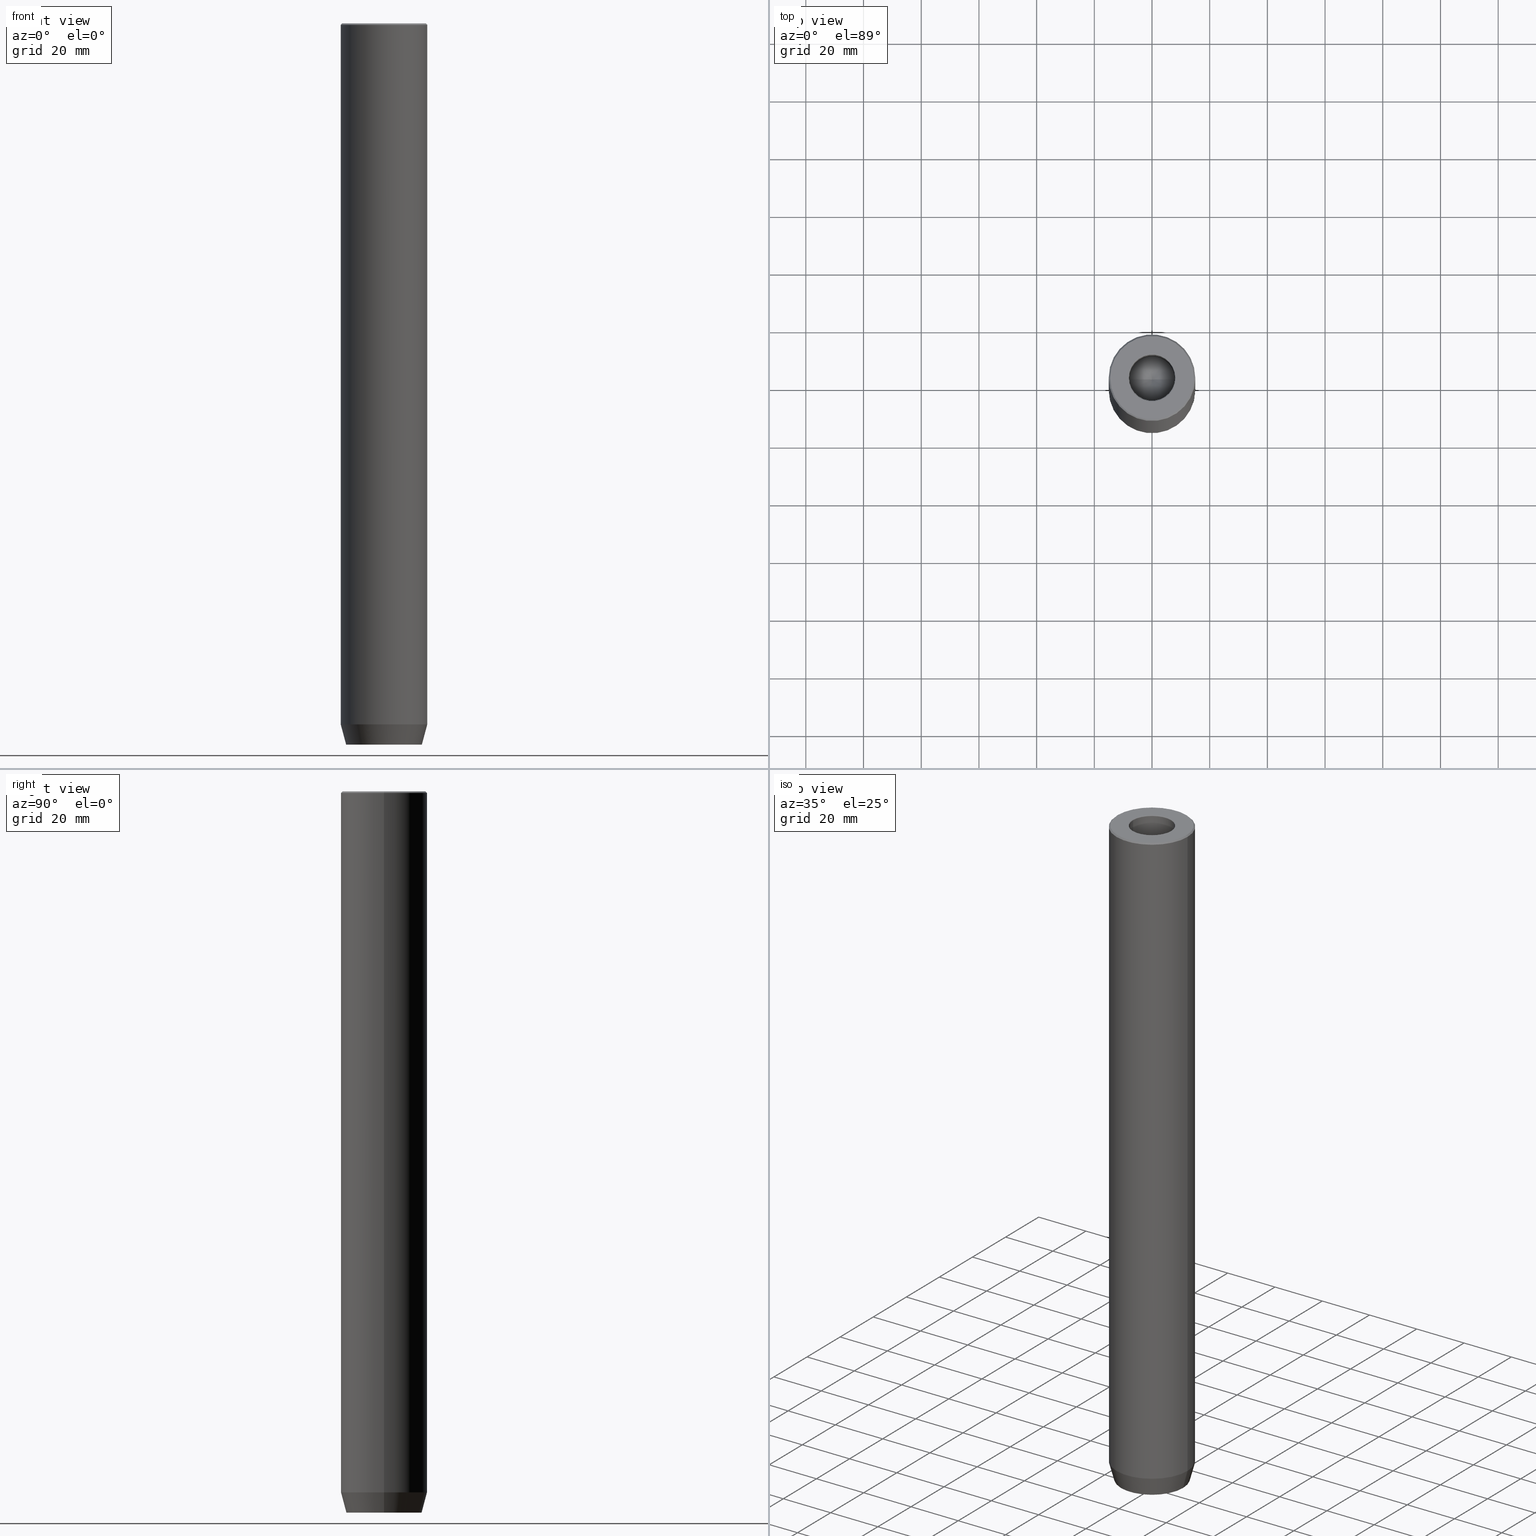
[diagram: canonical four-view strip — front | top / right | iso, engineering-drawing reading convention]
A machine part, canonical four-view strip (front | top / right | iso — engineering-drawing reading convention). The complete STEP part file that produces these views, byte-faithful:
ISO-10303-21;
HEADER;
FILE_DESCRIPTION (( 'STEP AP203' ),
    '1' );
FILE_NAME ('df7d.STEP',
    '2024-01-02T17:23:55',
    ( '' ),
    ( '' ),
    'SwSTEP 2.0',
    'SolidWorks 2019',
    '' );
FILE_SCHEMA (( 'CONFIG_CONTROL_DESIGN' ));
ENDSEC;

DATA;
#1 = VECTOR ( 'NONE', #410, 999.9999999999998863 ) ;
#2 = ORIENTED_EDGE ( 'NONE', *, *, #561, .T. ) ;
#3 = CARTESIAN_POINT ( 'NONE',  ( -4.000000000000000000, 2.309401076758504257, -244.1999999999999886 ) ) ;
#4 = ORIENTED_EDGE ( 'NONE', *, *, #230, .F. ) ;
#5 = MECHANICAL_CONTEXT ( 'NONE', #555, 'mechanical' ) ;
#6 = CIRCLE ( 'NONE', #281, 14.49999999999995559 ) ;
#7 = CONICAL_SURFACE ( 'NONE', #94, 7.999999999999994671, 1.029744258676653423 ) ;
#8 = ADVANCED_FACE ( 'NONE', ( #259 ), #459, .F. ) ;
#9 = PLANE ( 'NONE',  #10 ) ;
#10 = AXIS2_PLACEMENT_3D ( 'NONE', #255, #261, #447 ) ;
#11 = ORIENTED_EDGE ( 'NONE', *, *, #442, .T. ) ;
#12 = CC_DESIGN_PERSON_AND_ORGANIZATION_ASSIGNMENT ( #607, #543, ( #47 ) ) ;
#13 = DIRECTION ( 'NONE',  ( 0.000000000000000000, 0.000000000000000000, -1.000000000000000000 ) ) ;
#14 = ORIENTED_EDGE ( 'NONE', *, *, #95, .F. ) ;
#15 = EDGE_LOOP ( 'NONE', ( #122, #244, #242, #264 ) ) ;
#16 = FACE_OUTER_BOUND ( 'NONE', #549, .T. ) ;
#17 = ADVANCED_FACE ( 'NONE', ( #604 ), #427, .T. ) ;
#18 = PERSON_AND_ORGANIZATION ( #80, #508 ) ;
#19 = FACE_OUTER_BOUND ( 'NONE', #130, .T. ) ;
#20 = DIRECTION ( 'NONE',  ( -0.000000000000000000, -0.000000000000000000, 1.000000000000000000 ) ) ;
#21 = DIRECTION ( 'NONE',  ( -0.000000000000000000, -0.000000000000000000, 1.000000000000000000 ) ) ;
#22 = VECTOR ( 'NONE', #524, 1000.000000000000000 ) ;
#23 = CARTESIAN_POINT ( 'NONE',  ( 2.000000000000000000, 3.464101615137755275, -244.1999999999999886 ) ) ;
#24 = CARTESIAN_POINT ( 'NONE',  ( 8.299999999999997158, 0.000000000000000000, -0.2999999999999999889 ) ) ;
#25 = EDGE_CURVE ( 'NONE', #475, #590, #614, .T. ) ;
#26 = FACE_OUTER_BOUND ( 'NONE', #129, .T. ) ;
#27 = CARTESIAN_POINT ( 'NONE',  ( 8.299999999999997158, 0.000000000000000000, 0.000000000000000000 ) ) ;
#28 = AXIS2_PLACEMENT_3D ( 'NONE', #106, #346, #460 ) ;
#29 = VERTEX_POINT ( 'NONE', #452 ) ;
#30 = DIRECTION ( 'NONE',  ( 0.5000000000000000000, -0.8660254037844387076, 0.000000000000000000 ) ) ;
#31 = LINE ( 'NONE', #279, #22 ) ;
#32 = EDGE_CURVE ( 'NONE', #433, #152, #571, .T. ) ;
#33 = VECTOR ( 'NONE', #441, 1000.000000000000000 ) ;
#34 = ORIENTED_EDGE ( 'NONE', *, *, #531, .F. ) ;
#35 = CARTESIAN_POINT ( 'NONE',  ( 7.999999999999996447, 0.000000000000000000, 0.000000000000000000 ) ) ;
#36 = VERTEX_POINT ( 'NONE', #486 ) ;
#37 = CARTESIAN_POINT ( 'NONE',  ( 0.000000000000000000, 0.000000000000000000, -243.0000000000000000 ) ) ;
#38 = AXIS2_PLACEMENT_3D ( 'NONE', #214, #56, #247 ) ;
#39 = CARTESIAN_POINT ( 'NONE',  ( -7.999999999999996447, 9.797174393178821713E-16, 0.000000000000000000 ) ) ;
#40 = CONICAL_SURFACE ( 'NONE', #262, 7.999999999999994671, 1.029744258676653423 ) ;
#41 = CARTESIAN_POINT ( 'NONE',  ( 0.000000000000000000, 0.000000000000000000, -30.00000000000000000 ) ) ;
#42 = DIRECTION ( 'NONE',  ( 0.000000000000000000, 0.000000000000000000, -1.000000000000000000 ) ) ;
#43 = DIRECTION ( 'NONE',  ( -0.8660254037844385966, -0.4999999999999998890, 0.000000000000000000 ) ) ;
#44 = EDGE_CURVE ( 'NONE', #445, #332, #471, .T. ) ;
#45 = EDGE_LOOP ( 'NONE', ( #267, #134, #505 ) ) ;
#46 = DIRECTION ( 'NONE',  ( 0.000000000000000000, -1.000000000000000000, 0.000000000000000000 ) ) ;
#47 = PRODUCT_DEFINITION_FORMATION_WITH_SPECIFIED_SOURCE ( 'LIBOVOLN�', '', #238, .NOT_KNOWN. ) ;
#48 = CC_DESIGN_PERSON_AND_ORGANIZATION_ASSIGNMENT ( #103, #352, ( #599 ) ) ;
#49 = CIRCLE ( 'NONE', #85, 7.999999999999994671 ) ;
#50 = VECTOR ( 'NONE', #474, 1000.000000000000000 ) ;
#51 = DIRECTION ( 'NONE',  ( 0.000000000000000000, 0.000000000000000000, -1.000000000000000000 ) ) ;
#52 = ADVANCED_FACE ( 'NONE', ( #534 ), #292, .T. ) ;
#53 = EDGE_LOOP ( 'NONE', ( #493, #450, #177, #438 ) ) ;
#54 =( LENGTH_UNIT ( ) NAMED_UNIT ( * ) SI_UNIT ( .MILLI., .METRE. ) );
#55 = CARTESIAN_POINT ( 'NONE',  ( -2.000000000000000000, 3.464101615137755275, -250.0000000000000000 ) ) ;
#56 = DIRECTION ( 'NONE',  ( 0.4999999999999999445, 0.8660254037844387076, -0.000000000000000000 ) ) ;
#57 = CARTESIAN_POINT ( 'NONE',  ( 0.000000000000000000, 0.000000000000000000, 0.000000000000000000 ) ) ;
#58 = CARTESIAN_POINT ( 'NONE',  ( 0.000000000000000000, 0.000000000000000000, 0.000000000000000000 ) ) ;
#59 = CIRCLE ( 'NONE', #587, 15.00000000000000000 ) ;
#60 = DIRECTION ( 'NONE',  ( -0.000000000000000000, -0.000000000000000000, -1.000000000000000000 ) ) ;
#61 = DIRECTION ( 'NONE',  ( -0.000000000000000000, -0.000000000000000000, 1.000000000000000000 ) ) ;
#62 = ORIENTED_EDGE ( 'NONE', *, *, #119, .F. ) ;
#63 = CARTESIAN_POINT ( 'NONE',  ( 15.00000000000000000, 0.000000000000000000, -243.0000000000000000 ) ) ;
#64 = CALENDAR_DATE ( 2024, 2, 1 ) ;
#65 = FACE_OUTER_BOUND ( 'NONE', #482, .T. ) ;
#66 = COORDINATED_UNIVERSAL_TIME_OFFSET ( 1, 0, .AHEAD. ) ;
#67 = CARTESIAN_POINT ( 'NONE',  ( -14.49999999999995559, 0.000000000000000000, 0.000000000000000000 ) ) ;
#68 = AXIS2_PLACEMENT_3D ( 'NONE', #625, #473, #171 ) ;
#69 = ORIENTED_EDGE ( 'NONE', *, *, #515, .T. ) ;
#70 = DIRECTION ( 'NONE',  ( -0.8660254037844385966, -0.4999999999999998890, 0.000000000000000000 ) ) ;
#71 = EDGE_CURVE ( 'NONE', #389, #498, #49, .T. ) ;
#72 = DIRECTION ( 'NONE',  ( -0.4999999999999999445, 0.8660254037844387076, 0.000000000000000000 ) ) ;
#73 = LOCAL_TIME ( 18, 23, 55.00000000000000000, #342 ) ;
#74 = FACE_OUTER_BOUND ( 'NONE', #15, .T. ) ;
#75 = EDGE_CURVE ( 'NONE', #152, #268, #405, .T. ) ;
#76 = CIRCLE ( 'NONE', #611, 7.999999999999994671 ) ;
#77 = DIRECTION ( 'NONE',  ( -0.000000000000000000, -0.000000000000000000, 1.000000000000000000 ) ) ;
#78 = CC_DESIGN_DATE_AND_TIME_ASSIGNMENT ( #601, #397, ( #211 ) ) ;
#79 = AXIS2_PLACEMENT_3D ( 'NONE', #331, #51, #377 ) ;
#80 = PERSON ( 'NEUR�EN�', 'NEUR�EN�', 'NEUR�EN�', ('NEUR�EN�'), ('NEUR�EN�'), ('NEUR�EN�') ) ;
#81 = PLANE ( 'NONE',  #341 ) ;
#82 = LINE ( 'NONE', #39, #232 ) ;
#83 = ORIENTED_EDGE ( 'NONE', *, *, #350, .T. ) ;
#84 = CARTESIAN_POINT ( 'NONE',  ( 7.999999999999996447, 0.000000000000000000, -0.2999999999999999889 ) ) ;
#85 = AXIS2_PLACEMENT_3D ( 'NONE', #510, #272, #575 ) ;
#86 = TOROIDAL_SURFACE ( 'NONE', #179, 8.299999999999997158, 0.2999999999999999889 ) ;
#87 = VERTEX_POINT ( 'NONE', #188 ) ;
#88 = EDGE_CURVE ( 'NONE', #288, #87, #31, .T. ) ;
#89 = LINE ( 'NONE', #629, #596 ) ;
#90 = ORIENTED_EDGE ( 'NONE', *, *, #507, .T. ) ;
#91 = LINE ( 'NONE', #291, #315 ) ;
#92 = ORIENTED_EDGE ( 'NONE', *, *, #576, .T. ) ;
#93 = DIRECTION ( 'NONE',  ( -1.000000000000000000, 1.224646799147353207E-16, 0.000000000000000000 ) ) ;
#94 = AXIS2_PLACEMENT_3D ( 'NONE', #41, #529, #522 ) ;
#95 = EDGE_CURVE ( 'NONE', #498, #251, #82, .T. ) ;
#96 = VECTOR ( 'NONE', #399, 1000.000000000000000 ) ;
#97 = ORIENTED_EDGE ( 'NONE', *, *, #135, .F. ) ;
#98 = CALENDAR_DATE ( 2024, 2, 1 ) ;
#99 = FACE_OUTER_BOUND ( 'NONE', #470, .T. ) ;
#100 = CC_DESIGN_PERSON_AND_ORGANIZATION_ASSIGNMENT ( #345, #403, ( #47 ) ) ;
#101 = EDGE_LOOP ( 'NONE', ( #273, #430 ) ) ;
#102 = ORIENTED_EDGE ( 'NONE', *, *, #602, .F. ) ;
#103 = PERSON_AND_ORGANIZATION ( #80, #508 ) ;
#104 = FACE_OUTER_BOUND ( 'NONE', #184, .T. ) ;
#105 = EDGE_LOOP ( 'NONE', ( #443, #132, #426, #383 ) ) ;
#106 = CARTESIAN_POINT ( 'NONE',  ( -1.999999999999999112, -3.464101615137755275, -244.1999999999999886 ) ) ;
#107 =( GEOMETRIC_REPRESENTATION_CONTEXT ( 3 ) GLOBAL_UNCERTAINTY_ASSIGNED_CONTEXT ( ( #424 ) ) GLOBAL_UNIT_ASSIGNED_CONTEXT ( ( #54, #308, #540 ) ) REPRESENTATION_CONTEXT ( 'NONE', 'WORKASPACE' ) );
#108 = AXIS2_PLACEMENT_3D ( 'NONE', #306, #451, #314 ) ;
#109 = EDGE_CURVE ( 'NONE', #498, #389, #76, .T. ) ;
#110 = APPROVAL_DATE_TIME ( #254, #465 ) ;
#111 = CARTESIAN_POINT ( 'NONE',  ( -7.999999999999994671, 9.797174393178819741E-16, -30.00000000000000000 ) ) ;
#112 = FACE_BOUND ( 'NONE', #201, .T. ) ;
#113 = AXIS2_PLACEMENT_3D ( 'NONE', #477, #390, #93 ) ;
#114 = DIRECTION ( 'NONE',  ( 1.000000000000000000, 0.000000000000000000, 0.000000000000000000 ) ) ;
#115 = EDGE_LOOP ( 'NONE', ( #605, #203, #199, #391 ) ) ;
#116 = VECTOR ( 'NONE', #77, 1000.000000000000000 ) ;
#117 = DIRECTION ( 'NONE',  ( 1.000000000000000000, 0.000000000000000000, 0.000000000000000000 ) ) ;
#118 = DIRECTION ( 'NONE',  ( 1.000000000000000000, 0.000000000000000000, 0.000000000000000000 ) ) ;
#119 = EDGE_CURVE ( 'NONE', #226, #381, #362, .T. ) ;
#120 = LINE ( 'NONE', #552, #307 ) ;
#121 = CARTESIAN_POINT ( 'NONE',  ( 15.00000000000000000, 0.000000000000000000, -0.5000000000000662803 ) ) ;
#122 = ORIENTED_EDGE ( 'NONE', *, *, #442, .F. ) ;
#123 = DIRECTION ( 'NONE',  ( -0.000000000000000000, -0.000000000000000000, -1.000000000000000000 ) ) ;
#124 = CARTESIAN_POINT ( 'NONE',  ( 4.000000000000000000, -2.309401076758503368, -244.1999999999999886 ) ) ;
#125 = AXIS2_PLACEMENT_3D ( 'NONE', #318, #365, #114 ) ;
#126 = CARTESIAN_POINT ( 'NONE',  ( -4.000000000000000000, 2.309401076758504257, -244.1999999999999886 ) ) ;
#127 = DIRECTION ( 'NONE',  ( 1.000000000000000000, 0.000000000000000000, 0.000000000000000000 ) ) ;
#128 = DIRECTION ( 'NONE',  ( -0.000000000000000000, -0.000000000000000000, 1.000000000000000000 ) ) ;
#129 = EDGE_LOOP ( 'NONE', ( #102, #276, #97, #385 ) ) ;
#130 = EDGE_LOOP ( 'NONE', ( #190, #348, #372 ) ) ;
#131 = VECTOR ( 'NONE', #43, 1000.000000000000227 ) ;
#132 = ORIENTED_EDGE ( 'NONE', *, *, #622, .F. ) ;
#133 = LINE ( 'NONE', #200, #553 ) ;
#134 = ORIENTED_EDGE ( 'NONE', *, *, #583, .T. ) ;
#135 = EDGE_CURVE ( 'NONE', #542, #251, #539, .T. ) ;
#136 = CARTESIAN_POINT ( 'NONE',  ( 7.999999999999994671, 0.000000000000000000, -30.00000000000000000 ) ) ;
#137 = AXIS2_PLACEMENT_3D ( 'NONE', #418, #30, #225 ) ;
#138 = DIRECTION ( 'NONE',  ( -0.000000000000000000, -0.000000000000000000, 1.000000000000000000 ) ) ;
#139 = EDGE_LOOP ( 'NONE', ( #513, #173, #294, #388 ) ) ;
#140 = EDGE_LOOP ( 'NONE', ( #434, #530, #282, #592 ) ) ;
#141 = CARTESIAN_POINT ( 'NONE',  ( 4.000000000000000000, 0.000000000000000000, -244.1999999999999886 ) ) ;
#142 = ORIENTED_EDGE ( 'NONE', *, *, #88, .F. ) ;
#143 = EDGE_CURVE ( 'NONE', #519, #268, #573, .T. ) ;
#144 = DIRECTION ( 'NONE',  ( -0.2588190451025222383, 3.169619151431782814E-17, 0.9659258262890678681 ) ) ;
#145 = ORIENTED_EDGE ( 'NONE', *, *, #135, .T. ) ;
#146 = VERTEX_POINT ( 'NONE', #126 ) ;
#147 = PERSON_AND_ORGANIZATION_ROLE ( 'design_owner' ) ;
#148 = CC_DESIGN_APPROVAL ( #593, ( #47 ) ) ;
#149 = APPROVAL_ROLE ( '' ) ;
#150 = PLANE ( 'NONE',  #194 ) ;
#151 = ORIENTED_EDGE ( 'NONE', *, *, #119, .T. ) ;
#152 = VERTEX_POINT ( 'NONE', #185 ) ;
#153 = ORIENTED_EDGE ( 'NONE', *, *, #554, .T. ) ;
#154 = DIRECTION ( 'NONE',  ( -0.000000000000000000, -0.000000000000000000, 1.000000000000000000 ) ) ;
#155 = ADVANCED_FACE ( 'NONE', ( #562 ), #156, .T. ) ;
#156 = PLANE ( 'NONE',  #168 ) ;
#157 = SECURITY_CLASSIFICATION_LEVEL ( 'unclassified' ) ;
#158 = CARTESIAN_POINT ( 'NONE',  ( -8.296478875781655917E-15, 0.000000000000000000, -34.80688495222048573 ) ) ;
#159 = CC_DESIGN_APPROVAL ( #304, ( #599 ) ) ;
#160 = AXIS2_PLACEMENT_3D ( 'NONE', #58, #13, #612 ) ;
#161 = APPROVAL_STATUS ( 'not_yet_approved' ) ;
#162 = CARTESIAN_POINT ( 'NONE',  ( -2.000000000000000000, 3.464101615137755275, -244.1999999999999886 ) ) ;
#163 = EDGE_CURVE ( 'NONE', #288, #29, #241, .T. ) ;
#164 = CARTESIAN_POINT ( 'NONE',  ( 0.000000000000000000, 0.000000000000000000, 0.000000000000000000 ) ) ;
#165 = CARTESIAN_POINT ( 'NONE',  ( 0.000000000000000000, 0.000000000000000000, -0.2999999999999999889 ) ) ;
#166 = LINE ( 'NONE', #512, #327 ) ;
#167 = DIRECTION ( 'NONE',  ( 1.000000000000000000, 0.000000000000000000, 0.000000000000000000 ) ) ;
#168 = AXIS2_PLACEMENT_3D ( 'NONE', #476, #42, #514 ) ;
#169 = DIRECTION ( 'NONE',  ( -0.000000000000000000, -0.000000000000000000, 1.000000000000000000 ) ) ;
#170 = ORIENTED_EDGE ( 'NONE', *, *, #32, .F. ) ;
#171 = DIRECTION ( 'NONE',  ( 1.000000000000000000, 0.000000000000000000, 0.000000000000000000 ) ) ;
#172 = DIRECTION ( 'NONE',  ( -0.000000000000000000, -0.000000000000000000, -1.000000000000000000 ) ) ;
#173 = ORIENTED_EDGE ( 'NONE', *, *, #500, .F. ) ;
#174 = CARTESIAN_POINT ( 'NONE',  ( -4.000000000000000888, 1.502314598737159623E-15, -250.0000000000000000 ) ) ;
#175 = ORIENTED_EDGE ( 'NONE', *, *, #71, .F. ) ;
#176 = DIRECTION ( 'NONE',  ( -0.8660254037844387076, 0.4999999999999997224, 0.000000000000000000 ) ) ;
#177 = ORIENTED_EDGE ( 'NONE', *, *, #528, .F. ) ;
#178 = DIRECTION ( 'NONE',  ( -0.000000000000000000, -0.000000000000000000, -1.000000000000000000 ) ) ;
#179 = AXIS2_PLACEMENT_3D ( 'NONE', #416, #316, #511 ) ;
#180 = EDGE_LOOP ( 'NONE', ( #396, #440 ) ) ;
#181 = ORIENTED_EDGE ( 'NONE', *, *, #531, .T. ) ;
#182 = DIRECTION ( 'NONE',  ( -1.000000000000000000, 3.755786496842898071E-16, 0.000000000000000000 ) ) ;
#183 = ADVANCED_FACE ( 'NONE', ( #411 ), #521, .F. ) ;
#184 = EDGE_LOOP ( 'NONE', ( #378, #536, #4, #483 ) ) ;
#185 = CARTESIAN_POINT ( 'NONE',  ( -4.000000000000001776, -2.309401076758503368, -244.1999999999999886 ) ) ;
#186 = CARTESIAN_POINT ( 'NONE',  ( 0.000000000000000000, 0.000000000000000000, -250.0000000000000000 ) ) ;
#187 = DIRECTION ( 'NONE',  ( -0.8660254037844387076, 0.4999999999999997224, 0.000000000000000000 ) ) ;
#188 = CARTESIAN_POINT ( 'NONE',  ( -15.00000000000000000, 1.836970198721029589E-15, -0.5000000000000662803 ) ) ;
#189 = CC_DESIGN_APPROVAL ( #465, ( #211 ) ) ;
#190 = ORIENTED_EDGE ( 'NONE', *, *, #583, .F. ) ;
#191 = CARTESIAN_POINT ( 'NONE',  ( 1.999999999999999556, -3.464101615137754386, -244.1999999999999886 ) ) ;
#192 = CARTESIAN_POINT ( 'NONE',  ( 0.000000000000000000, 0.000000000000000000, 0.000000000000000000 ) ) ;
#193 = ADVANCED_BREP_SHAPE_REPRESENTATION ( 'df7d', ( #374, #425 ), #107 ) ;
#194 = AXIS2_PLACEMENT_3D ( 'NONE', #558, #506, #404 ) ;
#195 = EDGE_CURVE ( 'NONE', #433, #519, #120, .T. ) ;
#196 = ORIENTED_EDGE ( 'NONE', *, *, #507, .F. ) ;
#197 = CARTESIAN_POINT ( 'NONE',  ( 13.12435565298212659, 0.000000000000000000, -250.0000000000000000 ) ) ;
#198 = DIRECTION ( 'NONE',  ( 1.000000000000000000, 0.000000000000000000, 0.000000000000000000 ) ) ;
#199 = ORIENTED_EDGE ( 'NONE', *, *, #361, .T. ) ;
#200 = CARTESIAN_POINT ( 'NONE',  ( 15.00000000000000000, 0.000000000000000000, 0.000000000000000000 ) ) ;
#201 = EDGE_LOOP ( 'NONE', ( #419, #635, #409, #461, #334, #235 ) ) ;
#202 = CALENDAR_DATE ( 2024, 2, 1 ) ;
#203 = ORIENTED_EDGE ( 'NONE', *, *, #44, .F. ) ;
#204 = CARTESIAN_POINT ( 'NONE',  ( -7.999999999999996447, 9.797174393178821713E-16, -0.2999999999999999889 ) ) ;
#205 = VECTOR ( 'NONE', #70, 1000.000000000000227 ) ;
#206 = EDGE_CURVE ( 'NONE', #239, #498, #563, .T. ) ;
#207 = DIRECTION ( 'NONE',  ( -0.000000000000000000, 0.000000000000000000, -1.000000000000000000 ) ) ;
#208 = EDGE_LOOP ( 'NONE', ( #196, #2, #615, #297 ) ) ;
#209 = PERSON_AND_ORGANIZATION_ROLE ( 'creator' ) ;
#210 = CARTESIAN_POINT ( 'NONE',  ( 0.000000000000000000, 0.000000000000000000, -30.00000000000000000 ) ) ;
#211 = PRODUCT_DEFINITION ( 'NEZN�M�', '', #47, #478 ) ;
#212 = APPROVAL_STATUS ( 'not_yet_approved' ) ;
#213 = CARTESIAN_POINT ( 'NONE',  ( 15.00000000000000000, 0.000000000000000000, -243.0000000000000000 ) ) ;
#214 = CARTESIAN_POINT ( 'NONE',  ( 2.000000000000000000, 3.464101615137755275, -244.1999999999999886 ) ) ;
#215 = ADVANCED_FACE ( 'NONE', ( #112, #310 ), #9, .T. ) ;
#216 = AXIS2_PLACEMENT_3D ( 'NONE', #165, #61, #302 ) ;
#217 = DIRECTION ( 'NONE',  ( 1.000000000000000000, 0.000000000000000000, 0.000000000000000000 ) ) ;
#218 = PLANE ( 'NONE',  #363 ) ;
#219 = DIRECTION ( 'NONE',  ( 0.000000000000000000, 0.000000000000000000, -1.000000000000000000 ) ) ;
#220 = DIRECTION ( 'NONE',  ( -0.000000000000000000, -0.000000000000000000, 1.000000000000000000 ) ) ;
#221 = AXIS2_PLACEMENT_3D ( 'NONE', #330, #128, #167 ) ;
#222 = PLANE ( 'NONE',  #137 ) ;
#223 = VERTEX_POINT ( 'NONE', #504 ) ;
#224 = ADVANCED_FACE ( 'NONE', ( #349 ), #406, .F. ) ;
#225 = DIRECTION ( 'NONE',  ( 0.8660254037844385966, 0.4999999999999999445, 0.000000000000000000 ) ) ;
#226 = VERTEX_POINT ( 'NONE', #63 ) ;
#227 = PRODUCT_RELATED_PRODUCT_CATEGORY ( 'detail', '', ( #238 ) ) ;
#228 = AXIS2_PLACEMENT_3D ( 'NONE', #186, #284, #533 ) ;
#229 = LINE ( 'NONE', #467, #336 ) ;
#230 = EDGE_CURVE ( 'NONE', #146, #523, #344, .T. ) ;
#231 = CARTESIAN_POINT ( 'NONE',  ( 4.000000000000000000, -2.309401076758503368, -250.0000000000000000 ) ) ;
#232 = VECTOR ( 'NONE', #138, 1000.000000000000000 ) ;
#233 = CARTESIAN_POINT ( 'NONE',  ( 0.000000000000000000, 0.000000000000000000, -30.00000000000000000 ) ) ;
#234 = CARTESIAN_POINT ( 'NONE',  ( -7.999999999999994671, 9.797174393178819741E-16, -30.00000000000000000 ) ) ;
#235 = ORIENTED_EDGE ( 'NONE', *, *, #454, .F. ) ;
#236 = CARTESIAN_POINT ( 'NONE',  ( -4.000000000000000888, 1.502314598737159623E-15, -244.1999999999999886 ) ) ;
#237 = ADVANCED_FACE ( 'NONE', ( #458 ), #218, .F. ) ;
#238 = PRODUCT ( 'df7d', 'df7d', '', ( #5 ) ) ;
#239 = VERTEX_POINT ( 'NONE', #158 ) ;
#240 = LINE ( 'NONE', #136, #33 ) ;
#241 = CIRCLE ( 'NONE', #509, 14.49999999999995559 ) ;
#242 = ORIENTED_EDGE ( 'NONE', *, *, #639, .T. ) ;
#243 = DIRECTION ( 'NONE',  ( 0.000000000000000000, 0.000000000000000000, -1.000000000000000000 ) ) ;
#244 = ORIENTED_EDGE ( 'NONE', *, *, #624, .T. ) ;
#245 = DIRECTION ( 'NONE',  ( 1.000000000000000000, 0.000000000000000000, 0.000000000000000000 ) ) ;
#246 = DIRECTION ( 'NONE',  ( 0.8660254037844387076, 0.4999999999999999445, 0.000000000000000000 ) ) ;
#247 = DIRECTION ( 'NONE',  ( -0.8660254037844385966, 0.4999999999999998890, 0.000000000000000000 ) ) ;
#248 = EDGE_CURVE ( 'NONE', #251, #542, #384, .T. ) ;
#249 = APPROVAL_PERSON_ORGANIZATION ( #395, #465, #550 ) ;
#250 = DIRECTION ( 'NONE',  ( -0.000000000000000000, -0.000000000000000000, -1.000000000000000000 ) ) ;
#251 = VERTEX_POINT ( 'NONE', #204 ) ;
#252 = APPROVAL_STATUS ( 'not_yet_approved' ) ;
#253 = CARTESIAN_POINT ( 'NONE',  ( -4.000000000000001776, -2.309401076758503368, -250.0000000000000000 ) ) ;
#254 = DATE_AND_TIME ( #202, #326 ) ;
#255 = CARTESIAN_POINT ( 'NONE',  ( 0.000000000000000000, 13.12435565298212659, -250.0000000000000000 ) ) ;
#256 = VECTOR ( 'NONE', #338, 1000.000000000000000 ) ;
#257 = ADVANCED_FACE ( 'NONE', ( #19 ), #40, .F. ) ;
#258 = AXIS2_PLACEMENT_3D ( 'NONE', #337, #243, #376 ) ;
#259 = FACE_OUTER_BOUND ( 'NONE', #105, .T. ) ;
#260 = CARTESIAN_POINT ( 'NONE',  ( 0.000000000000000000, 0.000000000000000000, 0.000000000000000000 ) ) ;
#261 = DIRECTION ( 'NONE',  ( 0.000000000000000000, 0.000000000000000000, -1.000000000000000000 ) ) ;
#262 = AXIS2_PLACEMENT_3D ( 'NONE', #210, #603, #502 ) ;
#263 = CONICAL_SURFACE ( 'NONE', #428, 14.49999999999995559, 0.7853981633974257415 ) ;
#264 = ORIENTED_EDGE ( 'NONE', *, *, #368, .T. ) ;
#265 = CARTESIAN_POINT ( 'NONE',  ( 8.673617379884035472E-16, -4.618802153517004960, -244.1999999999999886 ) ) ;
#266 = LINE ( 'NONE', #468, #572 ) ;
#267 = ORIENTED_EDGE ( 'NONE', *, *, #206, .F. ) ;
#268 = VERTEX_POINT ( 'NONE', #253 ) ;
#269 = ADVANCED_FACE ( 'NONE', ( #65 ), #541, .F. ) ;
#270 = CARTESIAN_POINT ( 'NONE',  ( 0.000000000000000000, 0.000000000000000000, 0.000000000000000000 ) ) ;
#271 = LOCAL_TIME ( 18, 23, 55.00000000000000000, #494 ) ;
#272 = DIRECTION ( 'NONE',  ( -0.000000000000000000, -0.000000000000000000, 1.000000000000000000 ) ) ;
#273 = ORIENTED_EDGE ( 'NONE', *, *, #412, .F. ) ;
#274 = AXIS2_PLACEMENT_3D ( 'NONE', #192, #339, #198 ) ;
#275 = CARTESIAN_POINT ( 'NONE',  ( 1.999999999999999556, -3.464101615137754386, -250.0000000000000000 ) ) ;
#276 = ORIENTED_EDGE ( 'NONE', *, *, #588, .T. ) ;
#277 = CARTESIAN_POINT ( 'NONE',  ( 7.999999999999994671, 0.000000000000000000, -30.00000000000000000 ) ) ;
#278 = ORIENTED_EDGE ( 'NONE', *, *, #554, .F. ) ;
#279 = CARTESIAN_POINT ( 'NONE',  ( -14.49999999999995559, 0.000000000000000000, 0.000000000000000000 ) ) ;
#280 = EDGE_CURVE ( 'NONE', #584, #226, #303, .T. ) ;
#281 = AXIS2_PLACEMENT_3D ( 'NONE', #333, #526, #586 ) ;
#282 = ORIENTED_EDGE ( 'NONE', *, *, #88, .T. ) ;
#283 = CIRCLE ( 'NONE', #258, 8.299999999999997158 ) ;
#284 = DIRECTION ( 'NONE',  ( -0.000000000000000000, -0.000000000000000000, 1.000000000000000000 ) ) ;
#285 = CARTESIAN_POINT ( 'NONE',  ( 4.000000000000000000, 2.309401076758504257, -250.0000000000000000 ) ) ;
#286 = VECTOR ( 'NONE', #123, 1000.000000000000000 ) ;
#287 = ORIENTED_EDGE ( 'NONE', *, *, #230, .T. ) ;
#288 = VERTEX_POINT ( 'NONE', #67 ) ;
#289 = DIRECTION ( 'NONE',  ( -0.000000000000000000, -0.000000000000000000, 1.000000000000000000 ) ) ;
#290 = ORIENTED_EDGE ( 'NONE', *, *, #639, .F. ) ;
#291 = CARTESIAN_POINT ( 'NONE',  ( 4.000000000000000000, 0.000000000000000000, -250.0000000000000000 ) ) ;
#292 = CYLINDRICAL_SURFACE ( 'NONE', #221, 15.00000000000000000 ) ;
#293 = APPROVAL_PERSON_ORGANIZATION ( #559, #593, #149 ) ;
#294 = ORIENTED_EDGE ( 'NONE', *, *, #515, .F. ) ;
#295 = LINE ( 'NONE', #236, #466 ) ;
#296 = CIRCLE ( 'NONE', #480, 0.2999999999999999889 ) ;
#297 = ORIENTED_EDGE ( 'NONE', *, *, #624, .F. ) ;
#298 = DIRECTION ( 'NONE',  ( -0.000000000000000000, -0.000000000000000000, 1.000000000000000000 ) ) ;
#299 = CARTESIAN_POINT ( 'NONE',  ( 0.000000000000000000, 0.000000000000000000, 0.000000000000000000 ) ) ;
#300 = ADVANCED_FACE ( 'NONE', ( #99 ), #581, .T. ) ;
#301 = DATE_TIME_ROLE ( 'classification_date' ) ;
#302 = DIRECTION ( 'NONE',  ( 1.000000000000000000, 0.000000000000000000, 0.000000000000000000 ) ) ;
#303 = LINE ( 'NONE', #213, #96 ) ;
#304 = APPROVAL ( #161, 'NEUR�EN�' ) ;
#305 = PERSON_AND_ORGANIZATION ( #80, #508 ) ;
#306 = CARTESIAN_POINT ( 'NONE',  ( 0.000000000000000000, 0.000000000000000000, -0.2999999999999999889 ) ) ;
#307 = VECTOR ( 'NONE', #250, 1000.000000000000000 ) ;
#308 =( NAMED_UNIT ( * ) PLANE_ANGLE_UNIT ( ) SI_UNIT ( $, .RADIAN. ) );
#309 = ADVANCED_FACE ( 'NONE', ( #455, #16 ), #150, .T. ) ;
#310 = FACE_OUTER_BOUND ( 'NONE', #101, .T. ) ;
#311 = DIRECTION ( 'NONE',  ( -0.000000000000000000, -0.000000000000000000, 1.000000000000000000 ) ) ;
#312 = EDGE_LOOP ( 'NONE', ( #287, #545, #153, #564, #358, #69 ) ) ;
#313 = CC_DESIGN_PERSON_AND_ORGANIZATION_ASSIGNMENT ( #305, #209, ( #211 ) ) ;
#314 = DIRECTION ( 'NONE',  ( 1.000000000000000000, 0.000000000000000000, 0.000000000000000000 ) ) ;
#315 = VECTOR ( 'NONE', #46, 1000.000000000000000 ) ;
#316 = DIRECTION ( 'NONE',  ( -0.000000000000000000, -0.000000000000000000, 1.000000000000000000 ) ) ;
#317 = VECTOR ( 'NONE', #606, 999.9999999999998863 ) ;
#318 = CARTESIAN_POINT ( 'NONE',  ( 0.000000000000000000, 0.000000000000000000, -250.0000000000000000 ) ) ;
#319 = EDGE_CURVE ( 'NONE', #523, #223, #402, .T. ) ;
#320 = SHAPE_DEFINITION_REPRESENTATION ( #437, #193 ) ;
#321 = DIRECTION ( 'NONE',  ( 1.000000000000000000, 0.000000000000000000, 0.000000000000000000 ) ) ;
#322 = CIRCLE ( 'NONE', #79, 15.00000000000000000 ) ;
#323 = CARTESIAN_POINT ( 'NONE',  ( -1.999999999999999112, -3.464101615137755275, -250.0000000000000000 ) ) ;
#324 = DIRECTION ( 'NONE',  ( 0.000000000000000000, -1.000000000000000000, 0.000000000000000000 ) ) ;
#325 = VERTEX_POINT ( 'NONE', #616 ) ;
#326 = LOCAL_TIME ( 18, 23, 55.00000000000000000, #66 ) ;
#327 = VECTOR ( 'NONE', #172, 1000.000000000000000 ) ;
#328 = LINE ( 'NONE', #520, #50 ) ;
#329 = EDGE_CURVE ( 'NONE', #325, #36, #496, .T. ) ;
#330 = CARTESIAN_POINT ( 'NONE',  ( 0.000000000000000000, 0.000000000000000000, 0.000000000000000000 ) ) ;
#331 = CARTESIAN_POINT ( 'NONE',  ( 0.000000000000000000, 0.000000000000000000, -0.5000000000000662803 ) ) ;
#332 = VERTEX_POINT ( 'NONE', #544 ) ;
#333 = CARTESIAN_POINT ( 'NONE',  ( 0.000000000000000000, 0.000000000000000000, 0.000000000000000000 ) ) ;
#334 = ORIENTED_EDGE ( 'NONE', *, *, #576, .F. ) ;
#335 = CLOSED_SHELL ( 'NONE', ( #382, #183, #257, #300, #546, #52, #215, #309, #432, #17, #489, #609, #269, #415, #343, #628, #224, #463, #237, #8, #155 ) ) ;
#336 = VECTOR ( 'NONE', #620, 999.9999999999998863 ) ;
#337 = CARTESIAN_POINT ( 'NONE',  ( 0.000000000000000000, 0.000000000000000000, 0.000000000000000000 ) ) ;
#338 = DIRECTION ( 'NONE',  ( 0.000000000000000000, -1.000000000000000000, 0.000000000000000000 ) ) ;
#339 = DIRECTION ( 'NONE',  ( 0.000000000000000000, 0.000000000000000000, -1.000000000000000000 ) ) ;
#340 = FACE_OUTER_BOUND ( 'NONE', #413, .T. ) ;
#341 = AXIS2_PLACEMENT_3D ( 'NONE', #429, #182, #585 ) ;
#342 = COORDINATED_UNIVERSAL_TIME_OFFSET ( 1, 0, .AHEAD. ) ;
#343 = ADVANCED_FACE ( 'NONE', ( #104 ), #360, .F. ) ;
#344 = LINE ( 'NONE', #162, #317 ) ;
#345 = PERSON_AND_ORGANIZATION ( #80, #508 ) ;
#346 = DIRECTION ( 'NONE',  ( -0.4999999999999998335, -0.8660254037844388186, 0.000000000000000000 ) ) ;
#347 = DIRECTION ( 'NONE',  ( 1.000000000000000000, 0.000000000000000000, 0.000000000000000000 ) ) ;
#348 = ORIENTED_EDGE ( 'NONE', *, *, #206, .T. ) ;
#349 = FACE_OUTER_BOUND ( 'NONE', #538, .T. ) ;
#350 = EDGE_CURVE ( 'NONE', #389, #542, #464, .T. ) ;
#351 = LOCAL_TIME ( 18, 23, 55.00000000000000000, #556 ) ;
#352 = PERSON_AND_ORGANIZATION_ROLE ( 'classification_officer' ) ;
#353 = CARTESIAN_POINT ( 'NONE',  ( 4.000000000000000000, 0.000000000000000000, -244.1999999999999886 ) ) ;
#354 = AXIS2_PLACEMENT_3D ( 'NONE', #574, #72, #370 ) ;
#355 = CC_DESIGN_DATE_AND_TIME_ASSIGNMENT ( #444, #301, ( #599 ) ) ;
#356 = COORDINATED_UNIVERSAL_TIME_OFFSET ( 1, 0, .AHEAD. ) ;
#357 = DIRECTION ( 'NONE',  ( 1.000000000000000000, 0.000000000000000000, -0.000000000000000000 ) ) ;
#358 = ORIENTED_EDGE ( 'NONE', *, *, #32, .T. ) ;
#359 = DIRECTION ( 'NONE',  ( 0.000000000000000000, 0.000000000000000000, -1.000000000000000000 ) ) ;
#360 = PLANE ( 'NONE',  #354 ) ;
#361 = EDGE_CURVE ( 'NONE', #445, #542, #296, .T. ) ;
#362 = CIRCLE ( 'NONE', #600, 15.00000000000000000 ) ;
#363 = AXIS2_PLACEMENT_3D ( 'NONE', #353, #357, #207 ) ;
#364 = LINE ( 'NONE', #275, #205 ) ;
#365 = DIRECTION ( 'NONE',  ( -0.000000000000000000, -0.000000000000000000, 1.000000000000000000 ) ) ;
#366 = CARTESIAN_POINT ( 'NONE',  ( -1.999999999999999112, -3.464101615137755275, -244.1999999999999886 ) ) ;
#367 = ORIENTED_EDGE ( 'NONE', *, *, #525, .F. ) ;
#368 = EDGE_CURVE ( 'NONE', #417, #87, #373, .T. ) ;
#369 = APPLICATION_CONTEXT ( 'configuration controlled 3d designs of mechanical parts and assemblies' ) ;
#370 = DIRECTION ( 'NONE',  ( -0.8660254037844385966, -0.4999999999999998890, 0.000000000000000000 ) ) ;
#371 = ORIENTED_EDGE ( 'NONE', *, *, #622, .T. ) ;
#372 = ORIENTED_EDGE ( 'NONE', *, *, #109, .T. ) ;
#373 = CIRCLE ( 'NONE', #490, 15.00000000000000000 ) ;
#374 = MANIFOLD_SOLID_BREP ( 'Odebrat vysunut�m1', #335 ) ;
#375 = VECTOR ( 'NONE', #637, 1000.000000000000000 ) ;
#376 = DIRECTION ( 'NONE',  ( 1.000000000000000000, 0.000000000000000000, 0.000000000000000000 ) ) ;
#377 = DIRECTION ( 'NONE',  ( 1.000000000000000000, 0.000000000000000000, 0.000000000000000000 ) ) ;
#378 = ORIENTED_EDGE ( 'NONE', *, *, #329, .T. ) ;
#379 = ORIENTED_EDGE ( 'NONE', *, *, #25, .F. ) ;
#380 = LINE ( 'NONE', #141, #256 ) ;
#381 = VERTEX_POINT ( 'NONE', #623 ) ;
#382 = ADVANCED_FACE ( 'NONE', ( #26 ), #462, .T. ) ;
#383 = ORIENTED_EDGE ( 'NONE', *, *, #393, .T. ) ;
#384 = CIRCLE ( 'NONE', #108, 7.999999999999996447 ) ;
#385 = ORIENTED_EDGE ( 'NONE', *, *, #361, .F. ) ;
#386 = CARTESIAN_POINT ( 'NONE',  ( 0.000000000000000000, 0.000000000000000000, -243.0000000000000000 ) ) ;
#387 = VECTOR ( 'NONE', #579, 1000.000000000000000 ) ;
#388 = ORIENTED_EDGE ( 'NONE', *, *, #75, .T. ) ;
#389 = VERTEX_POINT ( 'NONE', #277 ) ;
#390 = DIRECTION ( 'NONE',  ( 1.224646799147353207E-16, 1.000000000000000000, 0.000000000000000000 ) ) ;
#391 = ORIENTED_EDGE ( 'NONE', *, *, #248, .F. ) ;
#392 = CIRCLE ( 'NONE', #113, 0.2999999999999999334 ) ;
#393 = EDGE_CURVE ( 'NONE', #523, #36, #166, .T. ) ;
#394 = ORIENTED_EDGE ( 'NONE', *, *, #75, .F. ) ;
#395 = PERSON_AND_ORGANIZATION ( #80, #508 ) ;
#396 = ORIENTED_EDGE ( 'NONE', *, *, #44, .T. ) ;
#397 = DATE_TIME_ROLE ( 'creation_date' ) ;
#398 = AXIS2_PLACEMENT_3D ( 'NONE', #299, #154, #499 ) ;
#399 = DIRECTION ( 'NONE',  ( 0.2588190451025222383, 0.000000000000000000, 0.9659258262890678681 ) ) ;
#400 = ORIENTED_EDGE ( 'NONE', *, *, #412, .T. ) ;
#401 = PERSON_AND_ORGANIZATION ( #80, #508 ) ;
#402 = LINE ( 'NONE', #23, #1 ) ;
#403 = PERSON_AND_ORGANIZATION_ROLE ( 'creator' ) ;
#404 = DIRECTION ( 'NONE',  ( 1.000000000000000000, 0.000000000000000000, 0.000000000000000000 ) ) ;
#405 = LINE ( 'NONE', #630, #286 ) ;
#406 = PLANE ( 'NONE',  #28 ) ;
#407 = CIRCLE ( 'NONE', #125, 13.12435565298212659 ) ;
#408 = CARTESIAN_POINT ( 'NONE',  ( 0.000000000000000000, 0.000000000000000000, -243.0000000000000000 ) ) ;
#409 = ORIENTED_EDGE ( 'NONE', *, *, #143, .F. ) ;
#410 = DIRECTION ( 'NONE',  ( 0.8660254037844387076, -0.4999999999999999445, 0.000000000000000000 ) ) ;
#411 = FACE_OUTER_BOUND ( 'NONE', #598, .T. ) ;
#412 = EDGE_CURVE ( 'NONE', #584, #577, #407, .T. ) ;
#413 = EDGE_LOOP ( 'NONE', ( #400, #90, #62, #638 ) ) ;
#414 = DIRECTION ( 'NONE',  ( -0.000000000000000000, -0.000000000000000000, 1.000000000000000000 ) ) ;
#415 = ADVANCED_FACE ( 'NONE', ( #517 ), #86, .T. ) ;
#416 = CARTESIAN_POINT ( 'NONE',  ( 0.000000000000000000, 0.000000000000000000, -0.2999999999999999889 ) ) ;
#417 = VERTEX_POINT ( 'NONE', #121 ) ;
#418 = CARTESIAN_POINT ( 'NONE',  ( 1.999999999999999556, -3.464101615137754386, -244.1999999999999886 ) ) ;
#419 = ORIENTED_EDGE ( 'NONE', *, *, #329, .F. ) ;
#420 = EDGE_CURVE ( 'NONE', #590, #519, #364, .T. ) ;
#421 = LINE ( 'NONE', #174, #387 ) ;
#422 = ORIENTED_EDGE ( 'NONE', *, *, #163, .T. ) ;
#423 = FACE_OUTER_BOUND ( 'NONE', #140, .T. ) ;
#424 = UNCERTAINTY_MEASURE_WITH_UNIT (LENGTH_MEASURE( 1.000000000000000082E-05 ), #54, 'distance_accuracy_value', 'NONE');
#425 = AXIS2_PLACEMENT_3D ( 'NONE', #57, #610, #245 ) ;
#426 = ORIENTED_EDGE ( 'NONE', *, *, #319, .F. ) ;
#427 = CONICAL_SURFACE ( 'NONE', #518, 15.00000000000000000, 0.2617993877991509621 ) ;
#428 = AXIS2_PLACEMENT_3D ( 'NONE', #164, #359, #567 ) ;
#429 = CARTESIAN_POINT ( 'NONE',  ( -4.000000000000000888, 1.502314598737159623E-15, -244.1999999999999886 ) ) ;
#430 = ORIENTED_EDGE ( 'NONE', *, *, #561, .F. ) ;
#431 = LINE ( 'NONE', #488, #456 ) ;
#432 = ADVANCED_FACE ( 'NONE', ( #74 ), #472, .T. ) ;
#433 = VERTEX_POINT ( 'NONE', #265 ) ;
#434 = ORIENTED_EDGE ( 'NONE', *, *, #479, .F. ) ;
#435 = EDGE_LOOP ( 'NONE', ( #151, #11, #181, #290 ) ) ;
#436 = DIRECTION ( 'NONE',  ( 3.755786496842898071E-16, 1.000000000000000000, 0.000000000000000000 ) ) ;
#437 = PRODUCT_DEFINITION_SHAPE ( 'NONE', 'NONE',  #211 ) ;
#438 = ORIENTED_EDGE ( 'NONE', *, *, #25, .T. ) ;
#439 = AXIS2_PLACEMENT_3D ( 'NONE', #627, #220, #117 ) ;
#440 = ORIENTED_EDGE ( 'NONE', *, *, #602, .T. ) ;
#441 = DIRECTION ( 'NONE',  ( 0.8571673007021117785, 0.000000000000000000, 0.5150380749100550437 ) ) ;
#442 = EDGE_CURVE ( 'NONE', #381, #87, #266, .T. ) ;
#443 = ORIENTED_EDGE ( 'NONE', *, *, #454, .T. ) ;
#444 = DATE_AND_TIME ( #64, #351 ) ;
#445 = VERTEX_POINT ( 'NONE', #27 ) ;
#446 = APPLICATION_PROTOCOL_DEFINITION ( 'international standard', 'config_control_design', 1994, #555 ) ;
#447 = DIRECTION ( 'NONE',  ( -1.000000000000000000, 0.000000000000000000, -0.000000000000000000 ) ) ;
#448 = APPLICATION_PROTOCOL_DEFINITION ( 'international standard', 'config_control_design', 1994, #369 ) ;
#449 = VECTOR ( 'NONE', #60, 1000.000000000000000 ) ;
#450 = ORIENTED_EDGE ( 'NONE', *, *, #195, .F. ) ;
#451 = DIRECTION ( 'NONE',  ( -0.000000000000000000, -0.000000000000000000, 1.000000000000000000 ) ) ;
#452 = CARTESIAN_POINT ( 'NONE',  ( 14.49999999999995559, 1.806354028742343041E-15, 0.000000000000000000 ) ) ;
#453 = DATE_AND_TIME ( #503, #271 ) ;
#454 = EDGE_CURVE ( 'NONE', #36, #535, #229, .T. ) ;
#455 = FACE_BOUND ( 'NONE', #180, .T. ) ;
#456 = VECTOR ( 'NONE', #144, 1000.000000000000000 ) ;
#457 = APPROVAL_DATE_TIME ( #453, #593 ) ;
#458 = FACE_OUTER_BOUND ( 'NONE', #632, .T. ) ;
#459 = PLANE ( 'NONE',  #38 ) ;
#460 = DIRECTION ( 'NONE',  ( 0.8660254037844387076, -0.4999999999999997780, 0.000000000000000000 ) ) ;
#461 = ORIENTED_EDGE ( 'NONE', *, *, #420, .F. ) ;
#462 = TOROIDAL_SURFACE ( 'NONE', #439, 8.299999999999997158, 0.2999999999999999889 ) ;
#463 = ADVANCED_FACE ( 'NONE', ( #578 ), #222, .F. ) ;
#464 = LINE ( 'NONE', #35, #116 ) ;
#465 = APPROVAL ( #212, 'NEUR�EN�' ) ;
#466 = VECTOR ( 'NONE', #436, 1000.000000000000000 ) ;
#467 = CARTESIAN_POINT ( 'NONE',  ( 2.000000000000000000, 3.464101615137755275, -250.0000000000000000 ) ) ;
#468 = CARTESIAN_POINT ( 'NONE',  ( -15.00000000000000000, 1.836970198721029589E-15, 0.000000000000000000 ) ) ;
#469 = EDGE_CURVE ( 'NONE', #268, #325, #421, .T. ) ;
#470 = EDGE_LOOP ( 'NONE', ( #367, #532, #34, #142 ) ) ;
#471 = CIRCLE ( 'NONE', #274, 8.299999999999997158 ) ;
#472 = CYLINDRICAL_SURFACE ( 'NONE', #621, 15.00000000000000000 ) ;
#473 = DIRECTION ( 'NONE',  ( -0.000000000000000000, -0.000000000000000000, 1.000000000000000000 ) ) ;
#474 = DIRECTION ( 'NONE',  ( 0.7071067811865315855, 8.659560562354738108E-17, -0.7071067811865634489 ) ) ;
#475 = VERTEX_POINT ( 'NONE', #124 ) ;
#476 = CARTESIAN_POINT ( 'NONE',  ( 0.000000000000000000, 0.000000000000000000, -244.1999999999999886 ) ) ;
#477 = CARTESIAN_POINT ( 'NONE',  ( -8.299999999999997158, 1.016456843292302637E-15, -0.2999999999999999889 ) ) ;
#478 = DESIGN_CONTEXT ( 'detailed design', #369, 'design' ) ;
#479 = EDGE_CURVE ( 'NONE', #29, #417, #328, .T. ) ;
#480 = AXIS2_PLACEMENT_3D ( 'NONE', #24, #324, #618 ) ;
#481 = CARTESIAN_POINT ( 'NONE',  ( 2.168404344971008868E-16, 4.618802153517005848, -244.1999999999999886 ) ) ;
#482 = EDGE_LOOP ( 'NONE', ( #14, #175, #83, #145 ) ) ;
#483 = ORIENTED_EDGE ( 'NONE', *, *, #500, .T. ) ;
#484 = ORIENTED_EDGE ( 'NONE', *, *, #525, .T. ) ;
#485 = FACE_OUTER_BOUND ( 'NONE', #139, .T. ) ;
#486 = CARTESIAN_POINT ( 'NONE',  ( 8.673617379884035472E-16, 4.618802153517006737, -250.0000000000000000 ) ) ;
#487 = ORIENTED_EDGE ( 'NONE', *, *, #95, .T. ) ;
#488 = CARTESIAN_POINT ( 'NONE',  ( -15.00000000000000000, 1.836970198721029589E-15, -243.0000000000000000 ) ) ;
#489 = ADVANCED_FACE ( 'NONE', ( #423 ), #263, .T. ) ;
#490 = AXIS2_PLACEMENT_3D ( 'NONE', #570, #219, #321 ) ;
#491 = CARTESIAN_POINT ( 'NONE',  ( 8.673617379884035472E-16, -4.618802153517004960, -250.0000000000000000 ) ) ;
#492 = CARTESIAN_POINT ( 'NONE',  ( 0.000000000000000000, 0.000000000000000000, -243.0000000000000000 ) ) ;
#493 = ORIENTED_EDGE ( 'NONE', *, *, #420, .T. ) ;
#494 = COORDINATED_UNIVERSAL_TIME_OFFSET ( 1, 0, .AHEAD. ) ;
#495 = ORIENTED_EDGE ( 'NONE', *, *, #143, .T. ) ;
#496 = LINE ( 'NONE', #55, #557 ) ;
#497 = ORIENTED_EDGE ( 'NONE', *, *, #248, .T. ) ;
#498 = VERTEX_POINT ( 'NONE', #234 ) ;
#499 = DIRECTION ( 'NONE',  ( 1.000000000000000000, 0.000000000000000000, 0.000000000000000000 ) ) ;
#500 = EDGE_CURVE ( 'NONE', #146, #325, #636, .T. ) ;
#501 = VECTOR ( 'NONE', #187, 1000.000000000000114 ) ;
#502 = DIRECTION ( 'NONE',  ( 1.000000000000000000, 0.000000000000000000, 0.000000000000000000 ) ) ;
#503 = CALENDAR_DATE ( 2024, 2, 1 ) ;
#504 = CARTESIAN_POINT ( 'NONE',  ( 4.000000000000000000, 2.309401076758504257, -244.1999999999999886 ) ) ;
#505 = ORIENTED_EDGE ( 'NONE', *, *, #71, .T. ) ;
#506 = DIRECTION ( 'NONE',  ( 0.000000000000000000, -0.000000000000000000, 1.000000000000000000 ) ) ;
#507 = EDGE_CURVE ( 'NONE', #577, #381, #431, .T. ) ;
#508 = ORGANIZATION ( 'NEUR�EN�', 'NEUR�EN�', '' ) ;
#509 = AXIS2_PLACEMENT_3D ( 'NONE', #260, #21, #217 ) ;
#510 = CARTESIAN_POINT ( 'NONE',  ( 0.000000000000000000, 0.000000000000000000, -30.00000000000000000 ) ) ;
#511 = DIRECTION ( 'NONE',  ( 1.000000000000000000, 0.000000000000000000, 0.000000000000000000 ) ) ;
#512 = CARTESIAN_POINT ( 'NONE',  ( 2.168404344971008868E-16, 4.618802153517005848, -244.1999999999999886 ) ) ;
#513 = ORIENTED_EDGE ( 'NONE', *, *, #469, .T. ) ;
#514 = DIRECTION ( 'NONE',  ( -1.000000000000000000, 0.000000000000000000, -0.000000000000000000 ) ) ;
#515 = EDGE_CURVE ( 'NONE', #152, #146, #295, .T. ) ;
#516 = CC_DESIGN_SECURITY_CLASSIFICATION ( #599, ( #47 ) ) ;
#517 = FACE_OUTER_BOUND ( 'NONE', #115, .T. ) ;
#518 = AXIS2_PLACEMENT_3D ( 'NONE', #408, #20, #347 ) ;
#519 = VERTEX_POINT ( 'NONE', #491 ) ;
#520 = CARTESIAN_POINT ( 'NONE',  ( 14.49999999999995559, 1.775737858763656690E-15, 0.000000000000000000 ) ) ;
#521 = CYLINDRICAL_SURFACE ( 'NONE', #68, 7.999999999999996447 ) ;
#522 = DIRECTION ( 'NONE',  ( 1.000000000000000000, 0.000000000000000000, 0.000000000000000000 ) ) ;
#523 = VERTEX_POINT ( 'NONE', #481 ) ;
#524 = DIRECTION ( 'NONE',  ( -0.7071067811865315855, 0.000000000000000000, -0.7071067811865634489 ) ) ;
#525 = EDGE_CURVE ( 'NONE', #29, #288, #6, .T. ) ;
#526 = DIRECTION ( 'NONE',  ( -0.000000000000000000, -0.000000000000000000, 1.000000000000000000 ) ) ;
#527 = ORIENTED_EDGE ( 'NONE', *, *, #109, .F. ) ;
#528 = EDGE_CURVE ( 'NONE', #475, #433, #594, .T. ) ;
#529 = DIRECTION ( 'NONE',  ( -0.000000000000000000, -0.000000000000000000, 1.000000000000000000 ) ) ;
#530 = ORIENTED_EDGE ( 'NONE', *, *, #163, .F. ) ;
#531 = EDGE_CURVE ( 'NONE', #87, #417, #322, .T. ) ;
#532 = ORIENTED_EDGE ( 'NONE', *, *, #479, .T. ) ;
#533 = DIRECTION ( 'NONE',  ( 1.000000000000000000, 0.000000000000000000, 0.000000000000000000 ) ) ;
#534 = FACE_OUTER_BOUND ( 'NONE', #435, .T. ) ;
#535 = VERTEX_POINT ( 'NONE', #285 ) ;
#536 = ORIENTED_EDGE ( 'NONE', *, *, #393, .F. ) ;
#537 = CARTESIAN_POINT ( 'NONE',  ( -13.12435565298212659, 1.722120106425316494E-15, -250.0000000000000000 ) ) ;
#538 = EDGE_LOOP ( 'NONE', ( #495, #394, #170, #580 ) ) ;
#539 = CIRCLE ( 'NONE', #216, 7.999999999999996447 ) ;
#540 =( NAMED_UNIT ( * ) SI_UNIT ( $, .STERADIAN. ) SOLID_ANGLE_UNIT ( ) );
#541 = CYLINDRICAL_SURFACE ( 'NONE', #398, 7.999999999999996447 ) ;
#542 = VERTEX_POINT ( 'NONE', #84 ) ;
#543 = PERSON_AND_ORGANIZATION_ROLE ( 'design_supplier' ) ;
#544 = CARTESIAN_POINT ( 'NONE',  ( -8.299999999999997158, 1.016456843292302637E-15, 0.000000000000000000 ) ) ;
#545 = ORIENTED_EDGE ( 'NONE', *, *, #319, .T. ) ;
#546 = ADVANCED_FACE ( 'NONE', ( #340 ), #626, .T. ) ;
#547 = CARTESIAN_POINT ( 'NONE',  ( 4.000000000000000000, -2.309401076758503368, -244.1999999999999886 ) ) ;
#548 = CIRCLE ( 'NONE', #228, 13.12435565298212659 ) ;
#549 = EDGE_LOOP ( 'NONE', ( #422, #484 ) ) ;
#550 = APPROVAL_ROLE ( '' ) ;
#551 = ORIENTED_EDGE ( 'NONE', *, *, #350, .F. ) ;
#552 = CARTESIAN_POINT ( 'NONE',  ( 8.673617379884035472E-16, -4.618802153517004960, -244.1999999999999886 ) ) ;
#553 = VECTOR ( 'NONE', #298, 1000.000000000000000 ) ;
#554 = EDGE_CURVE ( 'NONE', #223, #475, #380, .T. ) ;
#555 = APPLICATION_CONTEXT ( 'configuration controlled 3d designs of mechanical parts and assemblies' ) ;
#556 = COORDINATED_UNIVERSAL_TIME_OFFSET ( 1, 0, .AHEAD. ) ;
#557 = VECTOR ( 'NONE', #246, 999.9999999999998863 ) ;
#558 = CARTESIAN_POINT ( 'NONE',  ( 0.000000000000000000, 0.000000000000000000, 0.000000000000000000 ) ) ;
#559 = PERSON_AND_ORGANIZATION ( #80, #508 ) ;
#560 = DIRECTION ( 'NONE',  ( 1.000000000000000000, 0.000000000000000000, 0.000000000000000000 ) ) ;
#561 = EDGE_CURVE ( 'NONE', #577, #584, #548, .T. ) ;
#562 = FACE_OUTER_BOUND ( 'NONE', #312, .T. ) ;
#563 = LINE ( 'NONE', #111, #631 ) ;
#564 = ORIENTED_EDGE ( 'NONE', *, *, #528, .T. ) ;
#565 = APPROVAL_DATE_TIME ( #617, #304 ) ;
#566 = CC_DESIGN_PERSON_AND_ORGANIZATION_ASSIGNMENT ( #401, #147, ( #238 ) ) ;
#567 = DIRECTION ( 'NONE',  ( -1.000000000000000000, 0.000000000000000000, 0.000000000000000000 ) ) ;
#568 = APPROVAL_PERSON_ORGANIZATION ( #18, #304, #597 ) ;
#569 = CALENDAR_DATE ( 2024, 2, 1 ) ;
#570 = CARTESIAN_POINT ( 'NONE',  ( 0.000000000000000000, 0.000000000000000000, -0.5000000000000662803 ) ) ;
#571 = LINE ( 'NONE', #366, #501 ) ;
#572 = VECTOR ( 'NONE', #414, 1000.000000000000000 ) ;
#573 = LINE ( 'NONE', #323, #589 ) ;
#574 = CARTESIAN_POINT ( 'NONE',  ( -2.000000000000000000, 3.464101615137755275, -244.1999999999999886 ) ) ;
#575 = DIRECTION ( 'NONE',  ( 1.000000000000000000, 0.000000000000000000, 0.000000000000000000 ) ) ;
#576 = EDGE_CURVE ( 'NONE', #535, #590, #91, .T. ) ;
#577 = VERTEX_POINT ( 'NONE', #537 ) ;
#578 = FACE_OUTER_BOUND ( 'NONE', #53, .T. ) ;
#579 = DIRECTION ( 'NONE',  ( 3.755786496842898071E-16, 1.000000000000000000, 0.000000000000000000 ) ) ;
#580 = ORIENTED_EDGE ( 'NONE', *, *, #195, .T. ) ;
#581 = CONICAL_SURFACE ( 'NONE', #160, 14.49999999999995559, 0.7853981633974257415 ) ;
#582 = FACE_OUTER_BOUND ( 'NONE', #45, .T. ) ;
#583 = EDGE_CURVE ( 'NONE', #239, #389, #240, .T. ) ;
#584 = VERTEX_POINT ( 'NONE', #197 ) ;
#585 = DIRECTION ( 'NONE',  ( -3.755786496842898071E-16, -1.000000000000000000, 0.000000000000000000 ) ) ;
#586 = DIRECTION ( 'NONE',  ( 1.000000000000000000, 0.000000000000000000, 0.000000000000000000 ) ) ;
#587 = AXIS2_PLACEMENT_3D ( 'NONE', #37, #289, #127 ) ;
#588 = EDGE_CURVE ( 'NONE', #332, #251, #392, .T. ) ;
#589 = VECTOR ( 'NONE', #176, 1000.000000000000114 ) ;
#590 = VERTEX_POINT ( 'NONE', #231 ) ;
#591 = DIRECTION ( 'NONE',  ( 1.000000000000000000, 0.000000000000000000, 0.000000000000000000 ) ) ;
#592 = ORIENTED_EDGE ( 'NONE', *, *, #368, .F. ) ;
#593 = APPROVAL ( #252, 'NEUR�EN�' ) ;
#594 = LINE ( 'NONE', #191, #131 ) ;
#595 = AXIS2_PLACEMENT_3D ( 'NONE', #386, #633, #591 ) ;
#596 = VECTOR ( 'NONE', #178, 1000.000000000000000 ) ;
#597 = APPROVAL_ROLE ( '' ) ;
#598 = EDGE_LOOP ( 'NONE', ( #527, #487, #497, #551 ) ) ;
#599 = SECURITY_CLASSIFICATION ( '', '', #157 ) ;
#600 = AXIS2_PLACEMENT_3D ( 'NONE', #492, #634, #560 ) ;
#601 = DATE_AND_TIME ( #98, #619 ) ;
#602 = EDGE_CURVE ( 'NONE', #332, #445, #283, .T. ) ;
#603 = DIRECTION ( 'NONE',  ( -0.000000000000000000, -0.000000000000000000, 1.000000000000000000 ) ) ;
#604 = FACE_OUTER_BOUND ( 'NONE', #208, .T. ) ;
#605 = ORIENTED_EDGE ( 'NONE', *, *, #588, .F. ) ;
#606 = DIRECTION ( 'NONE',  ( 0.8660254037844387076, 0.4999999999999999445, 0.000000000000000000 ) ) ;
#607 = PERSON_AND_ORGANIZATION ( #80, #508 ) ;
#608 = DIRECTION ( 'NONE',  ( -0.8571673007021117785, 1.049727191138617956E-16, 0.5150380749100550437 ) ) ;
#609 = ADVANCED_FACE ( 'NONE', ( #582 ), #7, .F. ) ;
#610 = DIRECTION ( 'NONE',  ( 0.000000000000000000, 0.000000000000000000, 1.000000000000000000 ) ) ;
#611 = AXIS2_PLACEMENT_3D ( 'NONE', #233, #311, #613 ) ;
#612 = DIRECTION ( 'NONE',  ( -1.000000000000000000, 0.000000000000000000, 0.000000000000000000 ) ) ;
#613 = DIRECTION ( 'NONE',  ( 1.000000000000000000, 0.000000000000000000, 0.000000000000000000 ) ) ;
#614 = LINE ( 'NONE', #547, #449 ) ;
#615 = ORIENTED_EDGE ( 'NONE', *, *, #280, .T. ) ;
#616 = CARTESIAN_POINT ( 'NONE',  ( -4.000000000000000000, 2.309401076758504257, -250.0000000000000000 ) ) ;
#617 = DATE_AND_TIME ( #569, #73 ) ;
#618 = DIRECTION ( 'NONE',  ( 0.000000000000000000, 0.000000000000000000, -1.000000000000000000 ) ) ;
#619 = LOCAL_TIME ( 18, 23, 55.00000000000000000, #356 ) ;
#620 = DIRECTION ( 'NONE',  ( 0.8660254037844387076, -0.4999999999999999445, 0.000000000000000000 ) ) ;
#621 = AXIS2_PLACEMENT_3D ( 'NONE', #270, #169, #118 ) ;
#622 = EDGE_CURVE ( 'NONE', #223, #535, #89, .T. ) ;
#623 = CARTESIAN_POINT ( 'NONE',  ( -15.00000000000000000, 1.836970198721029589E-15, -243.0000000000000000 ) ) ;
#624 = EDGE_CURVE ( 'NONE', #381, #226, #59, .T. ) ;
#625 = CARTESIAN_POINT ( 'NONE',  ( 0.000000000000000000, 0.000000000000000000, 0.000000000000000000 ) ) ;
#626 = CONICAL_SURFACE ( 'NONE', #595, 15.00000000000000000, 0.2617993877991509621 ) ;
#627 = CARTESIAN_POINT ( 'NONE',  ( 0.000000000000000000, 0.000000000000000000, -0.2999999999999999889 ) ) ;
#628 = ADVANCED_FACE ( 'NONE', ( #485 ), #81, .F. ) ;
#629 = CARTESIAN_POINT ( 'NONE',  ( 4.000000000000000000, 2.309401076758504257, -244.1999999999999886 ) ) ;
#630 = CARTESIAN_POINT ( 'NONE',  ( -4.000000000000001776, -2.309401076758503368, -244.1999999999999886 ) ) ;
#631 = VECTOR ( 'NONE', #608, 1000.000000000000000 ) ;
#632 = EDGE_LOOP ( 'NONE', ( #92, #379, #278, #371 ) ) ;
#633 = DIRECTION ( 'NONE',  ( -0.000000000000000000, -0.000000000000000000, 1.000000000000000000 ) ) ;
#634 = DIRECTION ( 'NONE',  ( -0.000000000000000000, -0.000000000000000000, 1.000000000000000000 ) ) ;
#635 = ORIENTED_EDGE ( 'NONE', *, *, #469, .F. ) ;
#636 = LINE ( 'NONE', #3, #375 ) ;
#637 = DIRECTION ( 'NONE',  ( -0.000000000000000000, -0.000000000000000000, -1.000000000000000000 ) ) ;
#638 = ORIENTED_EDGE ( 'NONE', *, *, #280, .F. ) ;
#639 = EDGE_CURVE ( 'NONE', #226, #417, #133, .T. ) ;
ENDSEC;
END-ISO-10303-21;
